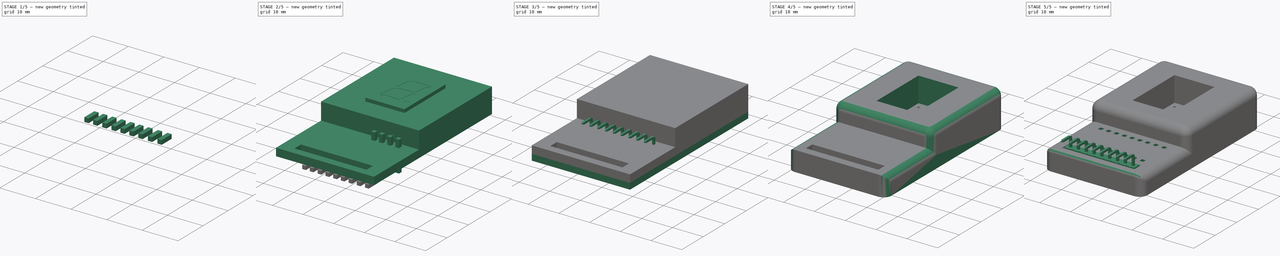
[diagram: build sequence overview — one tinted view per stage of 5, left to right]
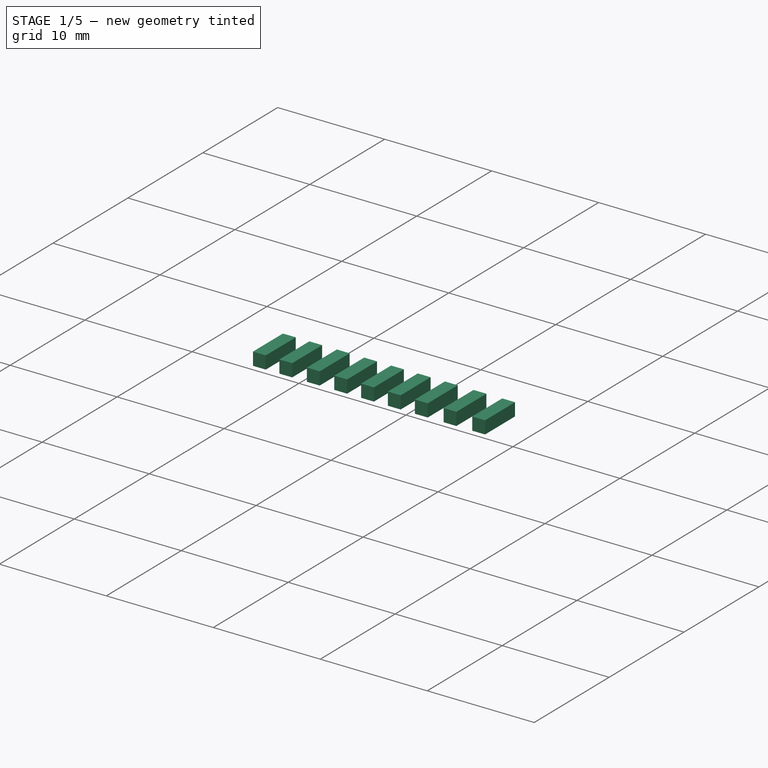
[diagram: stage 1 of 5 — iso view after this stage's code; geometry added in this stage tinted green]
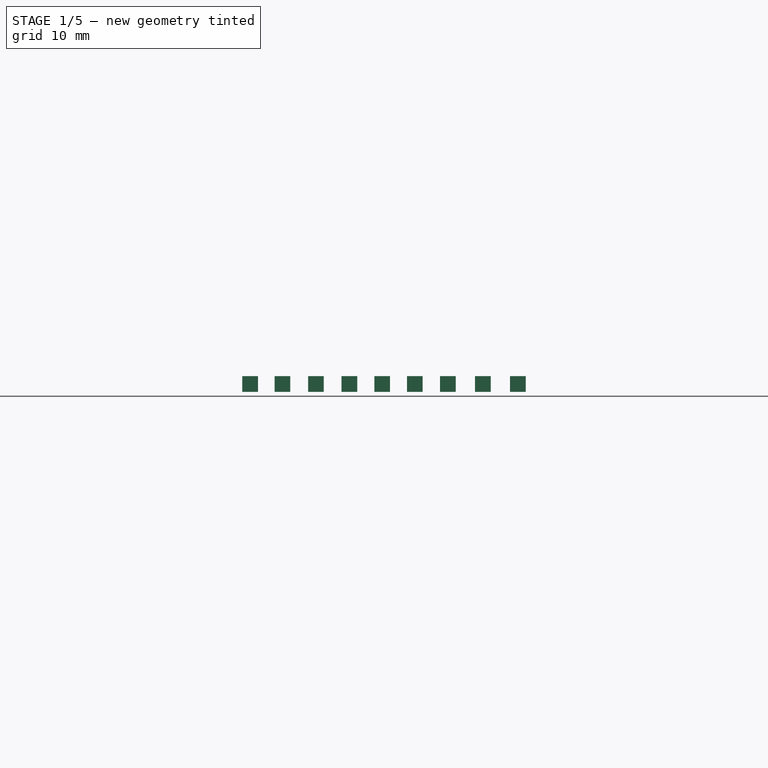
[diagram: stage 1 of 5 — front view after this stage's code; geometry added in this stage tinted green]
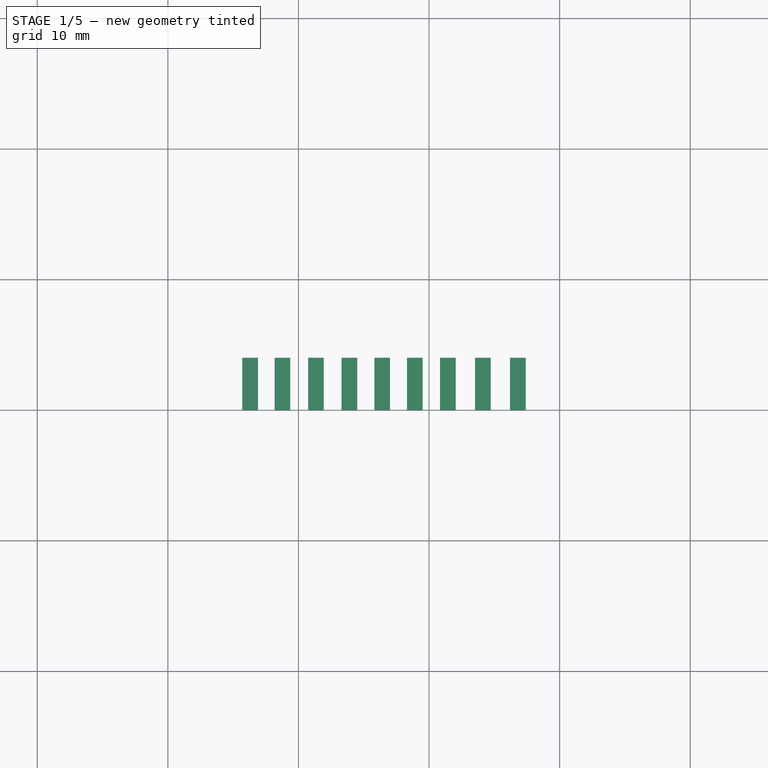
[diagram: stage 1 of 5 — top view after this stage's code; geometry added in this stage tinted green]
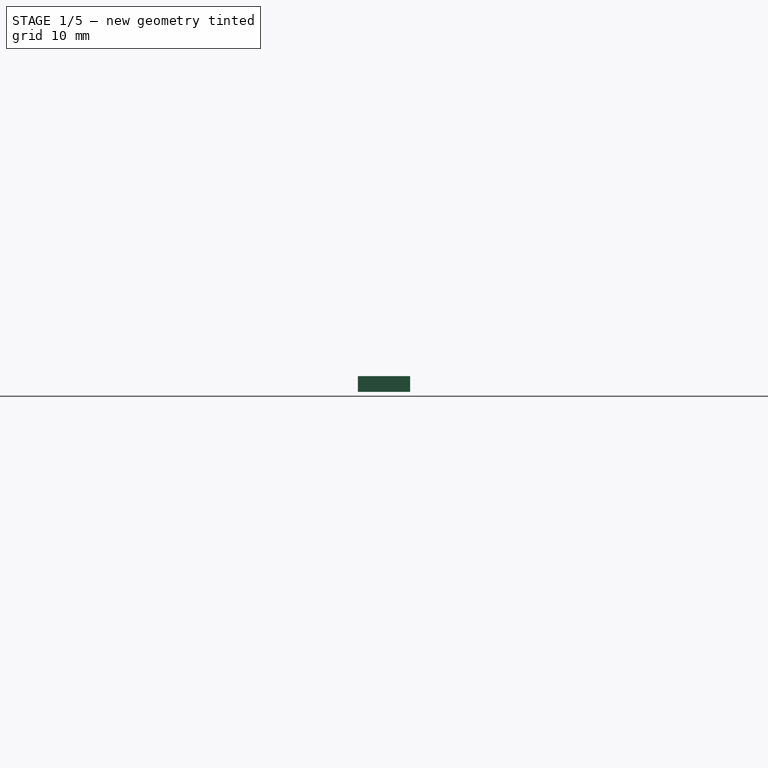
[diagram: stage 1 of 5 — right view after this stage's code; geometry added in this stage tinted green]
FCSTD DOCUMENT  (FreeCAD 0.18R16131 (Git))
Label: PCBPrint Display 7 seg resist
License: Public Domain
LicenseURL: http://en.wikipedia.org/wiki/Public_domain
objects: Part::Box×24, Part::Feature×20, Part::Cut×11, App::FeaturePython×9, Part::MultiFuse×5, Part::FeaturePython×4, App::DocumentObjectGroup×4, Part::Fillet×2, Sketcher::SketchObject×1, Part::Extrusion×1, Part::Offset×1
note: 69 computed .brp shape members not serialized (recipe doc carries the construction recipe); baked Part::Feature solids carry a one-line shape summary decoded from their .brp

FEATURE [Part::Box] Box015  label="Taladro009"
  AttacherType = Attacher::AttachEngine3D
  Height = 4
  Length = 1.2
  Placement = pos=(13.52,-5.86,-5) rot=(0,0,1;0rad)
  Width = 1.2
FEATURE [Part::Box] Box016  label="Taladro010"
  AttacherType = Attacher::AttachEngine3D
  Height = 4
  Length = 1.2
  Placement = pos=(16.2,-5.86,-5) rot=(0,0,1;0rad)
  Width = 1.2
FEATURE [Part::Box] Box017  label="Taladro011"
  AttacherType = Attacher::AttachEngine3D
  Height = 4
  Length = 1.2
  Placement = pos=(10.84,-5.86,-5) rot=(0,0,1;0rad)
  Width = 1.2
FEATURE [Part::Box] Box018  label="Taladro012"
  AttacherType = Attacher::AttachEngine3D
  Height = 4
  Length = 1.2
  Placement = pos=(-4.3,-5.86,-5) rot=(0,0,1;0rad)
  Width = 1.2
FEATURE [Part::Box] Box019  label="Taladro013"
  AttacherType = Attacher::AttachEngine3D
  Height = 4
  Length = 1.2
  Placement = pos=(-1.83,-5.86,-5) rot=(0,0,1;0rad)
  Width = 1.2
FEATURE [Part::Box] Box020  label="Taladro014"
  AttacherType = Attacher::AttachEngine3D
  Height = 4
  Length = 1.2
  Placement = pos=(0.74,-5.86,-5) rot=(0,0,1;0rad)
  Width = 1.2
FEATURE [Part::Box] Box021  label="Taladro015"
  AttacherType = Attacher::AttachEngine3D
  Height = 4
  Length = 1.2
  Placement = pos=(3.3,-5.86,-5) rot=(0,0,1;0rad)
  Width = 1.2
FEATURE [Part::Box] Box022  label="Taladro016"
  AttacherType = Attacher::AttachEngine3D
  Height = 4
  Length = 1.2
  Placement = pos=(5.81,-5.86,-5) rot=(0,0,1;0rad)
  Width = 1.2
FEATURE [Part::Box] Box023  label="Taladro017"
  AttacherType = Attacher::AttachEngine3D
  Height = 4
  Length = 1.2
  Placement = pos=(8.31,-5.86,-5) rot=(0,0,1;0rad)
  Width = 1.2
FEATURE [Part::MultiFuse] Fusion003001002  label="Taladros resistencia 004"
  Placement = pos=(0,-15,-8.7) rot=(1,0,0;-1.5708rad)
  Refine = true
  Shapes = -> [Box018,Box019,Box020,Box021,Box022,Box023,Box017,Box015,Box016]
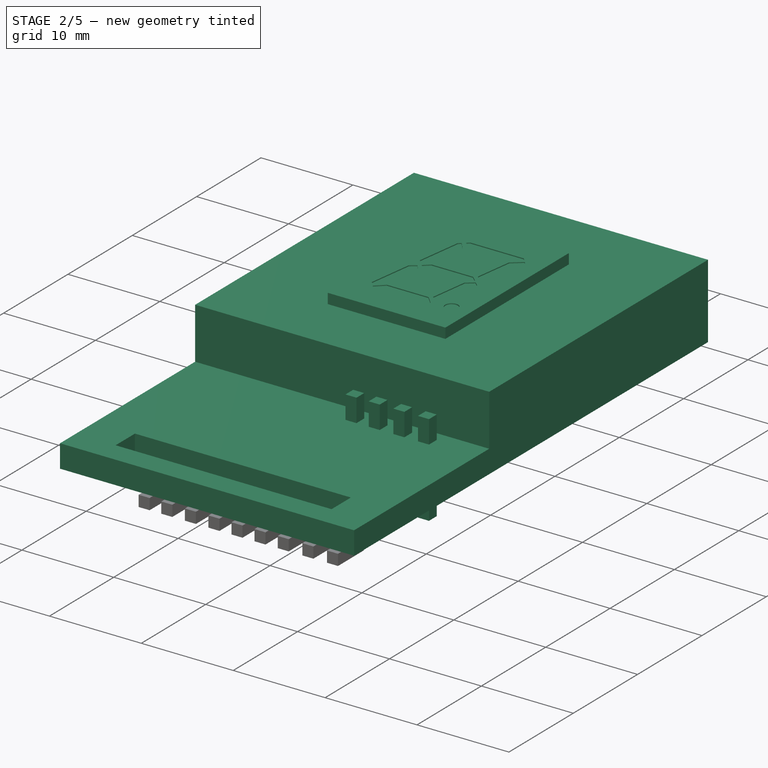
[diagram: stage 2 of 5 — iso view after this stage's code; geometry added in this stage tinted green]
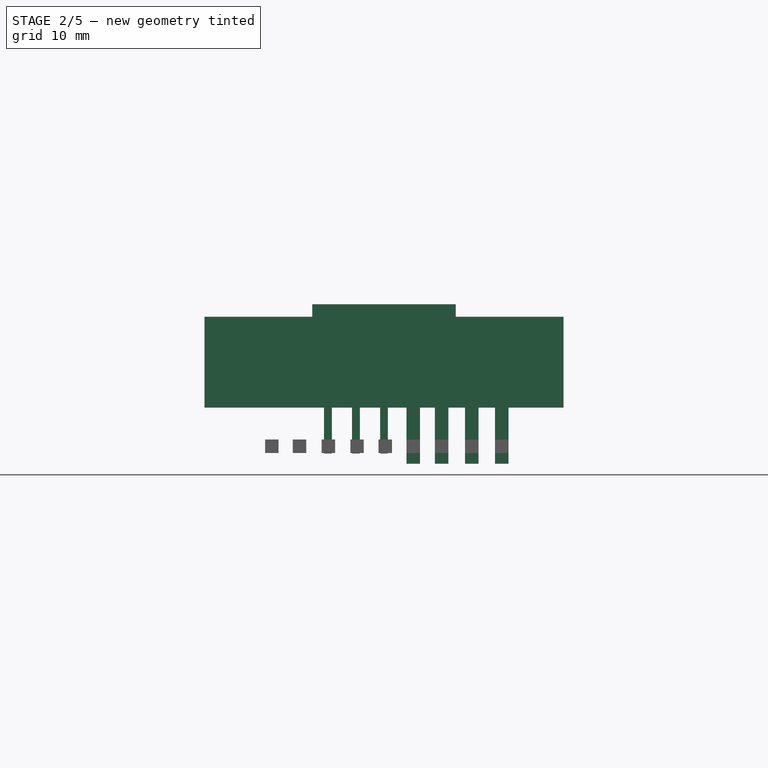
[diagram: stage 2 of 5 — front view after this stage's code; geometry added in this stage tinted green]
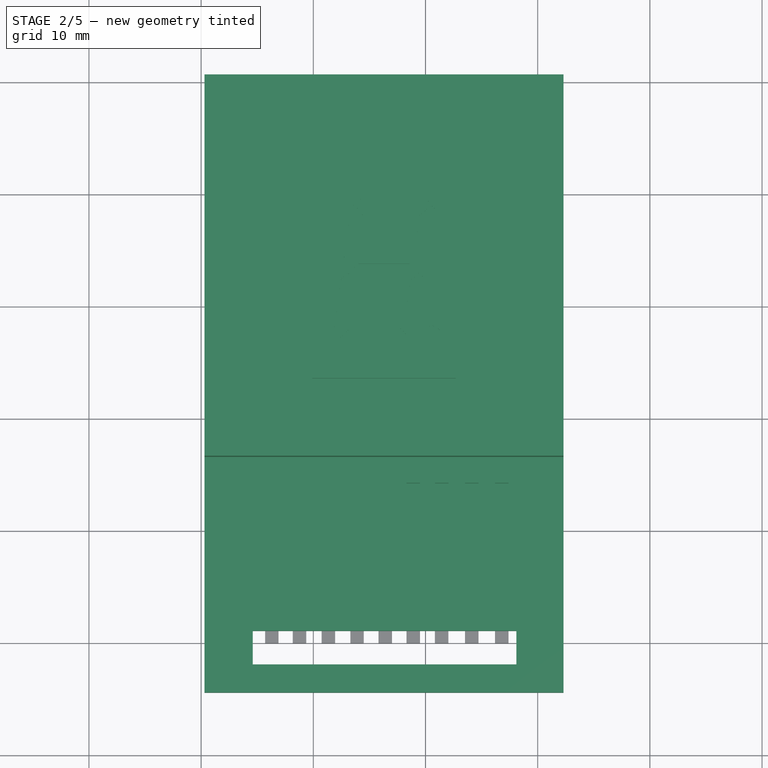
[diagram: stage 2 of 5 — top view after this stage's code; geometry added in this stage tinted green]
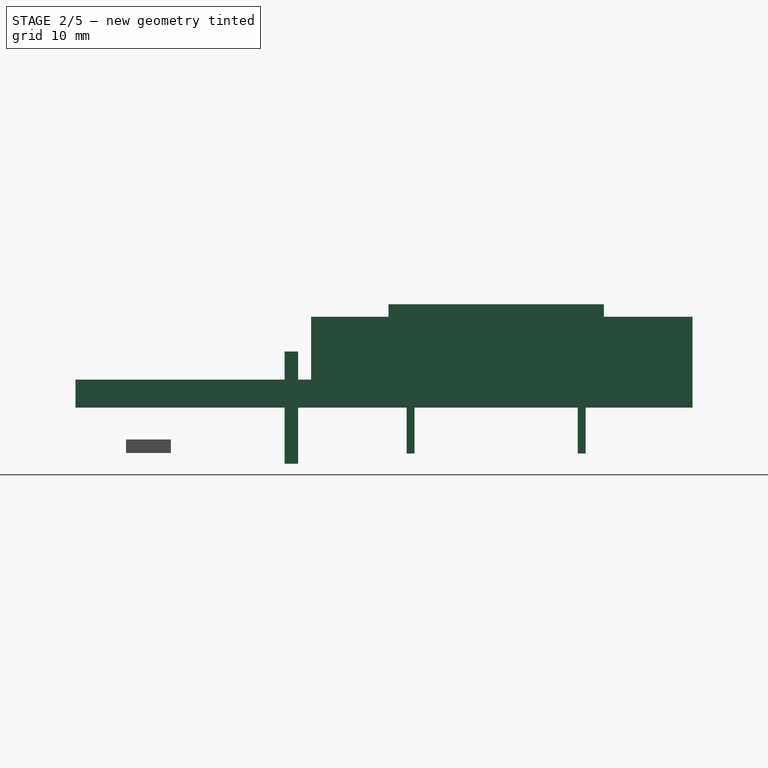
[diagram: stage 2 of 5 — right view after this stage's code; geometry added in this stage tinted green]
FEATURE [Part::Box] Box007  label="Taladro005"
  AttacherType = Attacher::AttachEngine3D
  Height = 10
  Length = 1.2
  Placement = pos=(8.31,-5.86,-5) rot=(0,0,1;0rad)
  Width = 1.2
FEATURE [Part::Box] Box008  label="Taladro006"
  AttacherType = Attacher::AttachEngine3D
  Height = 10
  Length = 1.2
  Placement = pos=(10.84,-5.86,-5) rot=(0,0,1;0rad)
  Width = 1.2
FEATURE [Part::Box] Box009  label="Taladro007"
  AttacherType = Attacher::AttachEngine3D
  Height = 10
  Length = 1.2
  Placement = pos=(13.52,-5.86,-5) rot=(0,0,1;0rad)
  Width = 1.2
FEATURE [Part::Box] Box010  label="Taladro008"
  AttacherType = Attacher::AttachEngine3D
  Height = 10
  Length = 1.2
  Placement = pos=(16.2,-5.86,-5) rot=(0,0,1;0rad)
  Width = 1.2
FEATURE [Part::Feature] Part__Feature002  label="Display_7_segmentos002"
  Placement = pos=(0,3.5,0.01) rot=(0,0,1;0rad)
  shape: bbox 12.6 x 19 x 13.1 mm, 127 faces (baked)
FEATURE [Part::Offset] Offset
  Fill = false
  Intersection = false
  Join = 2
  Mode = 0
  Placement = pos=(0,0,1) rot=(0,0,1;0rad)
  SelfIntersection = false
  Source = -> Part__Feature002
  Value = 0.1
FEATURE [Part::Box] Box011  label="Cubo001"
  AttacherType = Attacher::AttachEngine3D
  Height = 2.5
  Length = 32
  Placement = pos=(-9.7,-24.5,0) rot=(0,0,1;0rad)
  Width = 55
FEATURE [Part::Box] Box012  label="Cubo002"
  AttacherType = Attacher::AttachEngine3D
  Height = 3
  Length = 23.5
  Placement = pos=(-5.4,-22,-0.1) rot=(0,0,1;0rad)
  Width = 3
FEATURE [Part::Cut] Cut005  label="Taladro conector"
  Base = -> Box011
  Refine = true
  Tool = -> Box012
FEATURE [Part::Box] Box013  label="Cubo003"
  AttacherType = Attacher::AttachEngine3D
  Height = 5.6
  Length = 32
  Placement = pos=(-9.7,-3.5,2.5) rot=(0,0,1;0rad)
  Width = 34
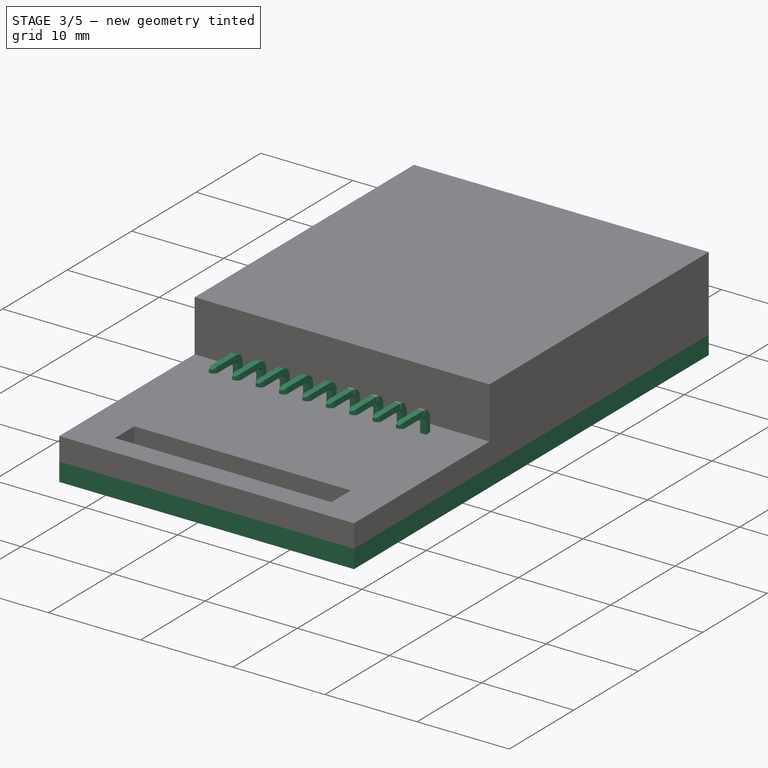
[diagram: stage 3 of 5 — iso view after this stage's code; geometry added in this stage tinted green]
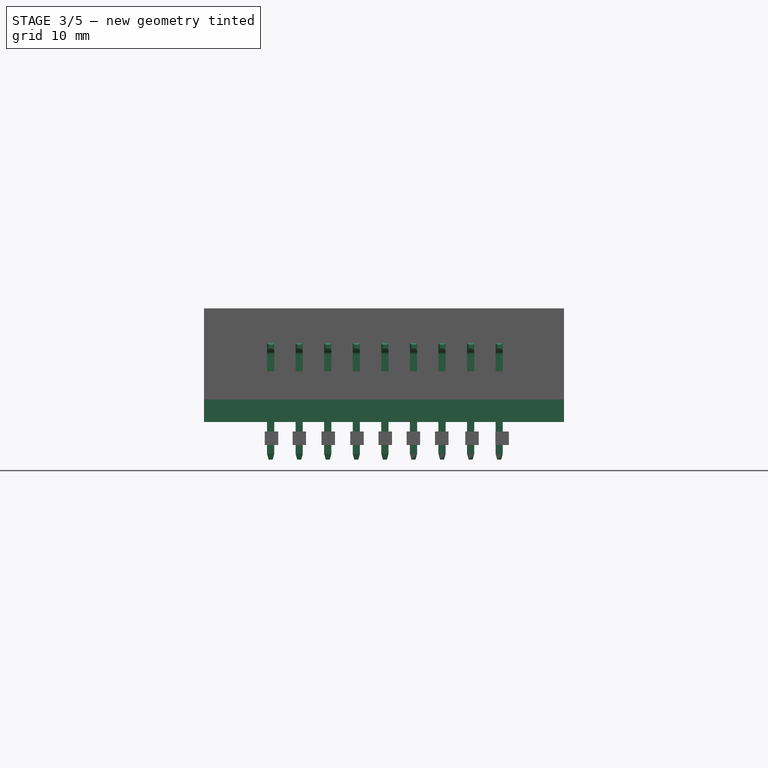
[diagram: stage 3 of 5 — front view after this stage's code; geometry added in this stage tinted green]
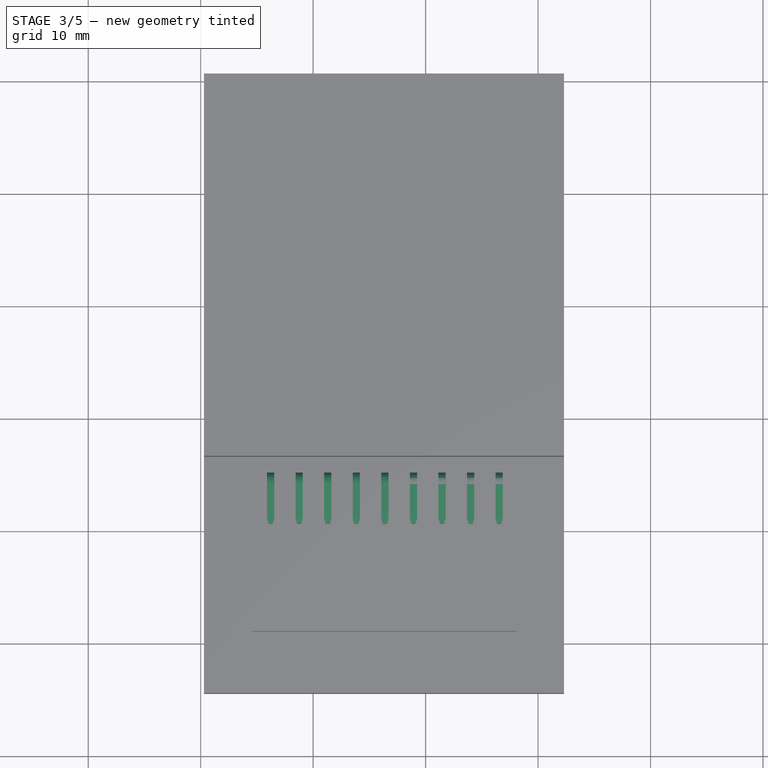
[diagram: stage 3 of 5 — top view after this stage's code; geometry added in this stage tinted green]
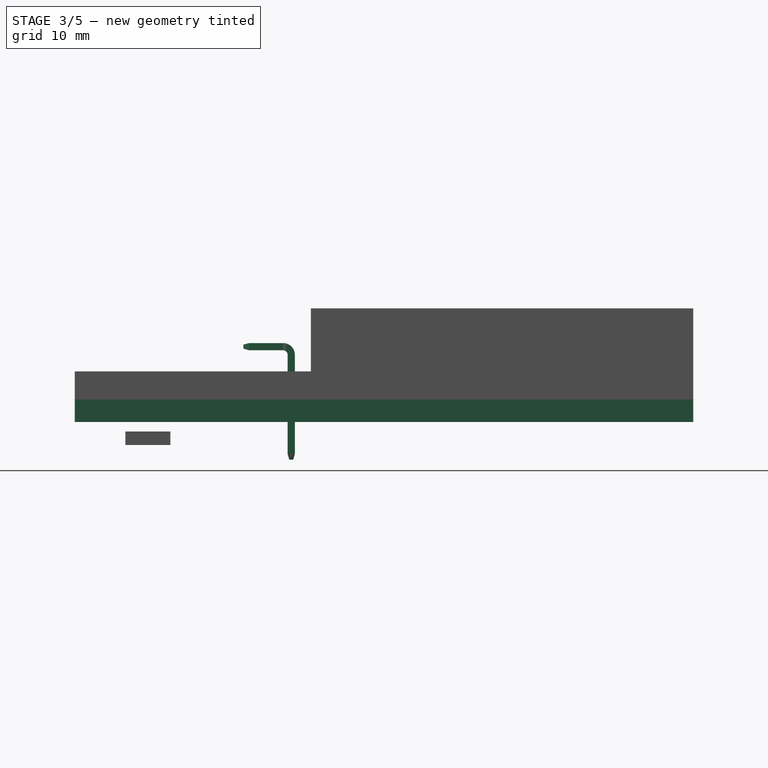
[diagram: stage 3 of 5 — right view after this stage's code; geometry added in this stage tinted green]
FEATURE [App::DocumentObjectGroup] Group002  label="conector"
  Group = -> [Fusion]
FEATURE [Part::Box] Box001  label="Base solida"
  AttacherType = Attacher::AttachEngine3D
  Height = 2
  Length = 32
  Placement = pos=(-9.7,-24.5,-2) rot=(0,0,1;0rad)
  Width = 55
FEATURE [Part::Feature] Clone001001001  label="pins006"
  Placement = pos=(3.84,-2.99972,4.7) rot=(0.57735,0.57735,0.57735;4.18879rad)
  shape: bbox 5.72 x 4.57 x 10.36 mm, 54 faces, 3 solids (baked)
FEATURE [Part::Feature] Clone002004001  label="pins005"
  Placement = pos=(11.46,-2.99972,4.7) rot=(0.57735,0.57735,0.57735;4.18879rad)
  shape: bbox 5.72 x 4.57 x 10.36 mm, 54 faces, 3 solids (baked)
FEATURE [Part::Feature] Clone002002001  label="pins004"
  Placement = pos=(-3.78,-2.99972,4.7) rot=(0.57735,0.57735,0.57735;4.18879rad)
  shape: bbox 5.72 x 4.57 x 10.36 mm, 54 faces, 3 solids (baked)
FEATURE [Part::MultiFuse] Fusion002  label="pines"
  Placement = pos=(0,-3.5,0) rot=(0,0,1;0rad)
  Refine = true
  Shapes = -> [Clone002002001,Clone002004001,Clone001001001]
FEATURE [Part::Box] Box002  label="Taladro"
  AttacherType = Attacher::AttachEngine3D
  Height = 10
  Length = 1.2
  Placement = pos=(-4.3,-5.86,-5) rot=(0,0,1;0rad)
  Width = 1.2
FEATURE [Part::Box] Box003  label="Taladro001"
  AttacherType = Attacher::AttachEngine3D
  Height = 10
  Length = 1.2
  Placement = pos=(-1.83,-5.86,-5) rot=(0,0,1;0rad)
  Width = 1.2
FEATURE [Part::Box] Box004  label="Taladro002"
  AttacherType = Attacher::AttachEngine3D
  Height = 10
  Length = 1.2
  Placement = pos=(0.74,-5.86,-5) rot=(0,0,1;0rad)
  Width = 1.2
FEATURE [Part::Box] Box005  label="Taladro003"
  AttacherType = Attacher::AttachEngine3D
  Height = 10
  Length = 1.2
  Placement = pos=(3.3,-5.86,-5) rot=(0,0,1;0rad)
  Width = 1.2
FEATURE [Part::Box] Box006  label="Taladro004"
  AttacherType = Attacher::AttachEngine3D
  Height = 10
  Length = 1.2
  Placement = pos=(5.81,-5.86,-5) rot=(0,0,1;0rad)
  Width = 1.2
FEATURE [Part::MultiFuse] Fusion003  label="Taladros resistencia 1"
  Placement = pos=(0,-1,0) rot=(0,0,1;0rad)
  Refine = true
  Shapes = -> [Box002,Box003,Box004,Box005,Box006,Box007,Box008,Box009,Box010]
FEATURE [Part::Cut] Cut003
  Base = -> Box001
  Refine = true
  Tool = -> Fusion003
FEATURE [Part::Cut] Cut004  label="Taladros display"
  Base = -> Cut003
  Refine = true
  Tool = -> Offset
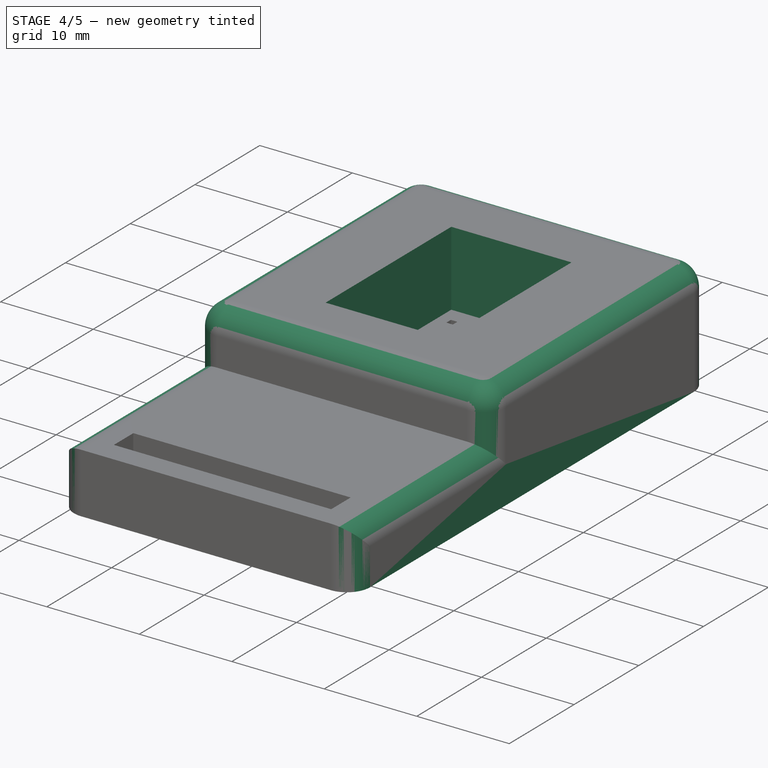
[diagram: stage 4 of 5 — iso view after this stage's code; geometry added in this stage tinted green]
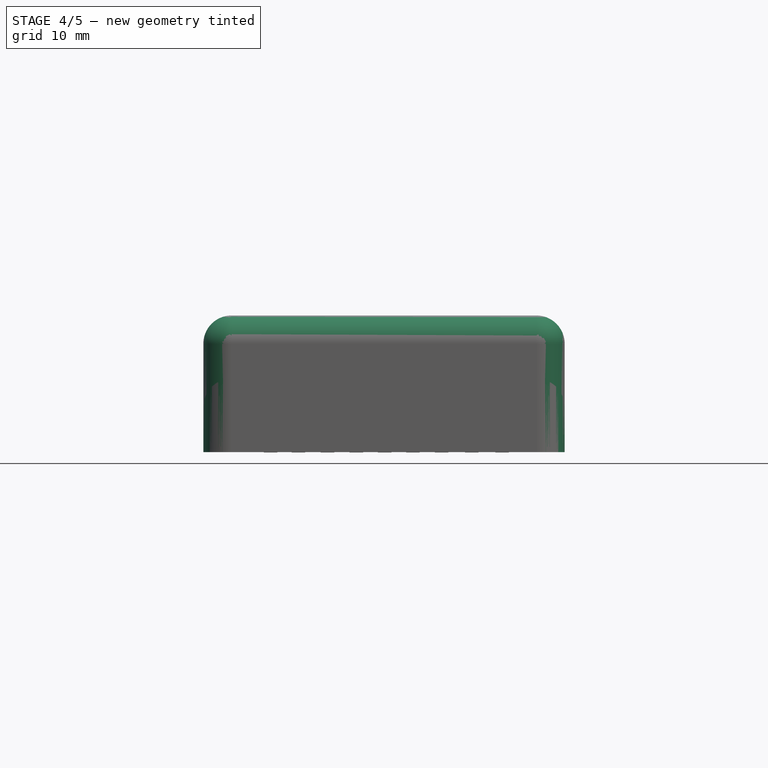
[diagram: stage 4 of 5 — front view after this stage's code; geometry added in this stage tinted green]
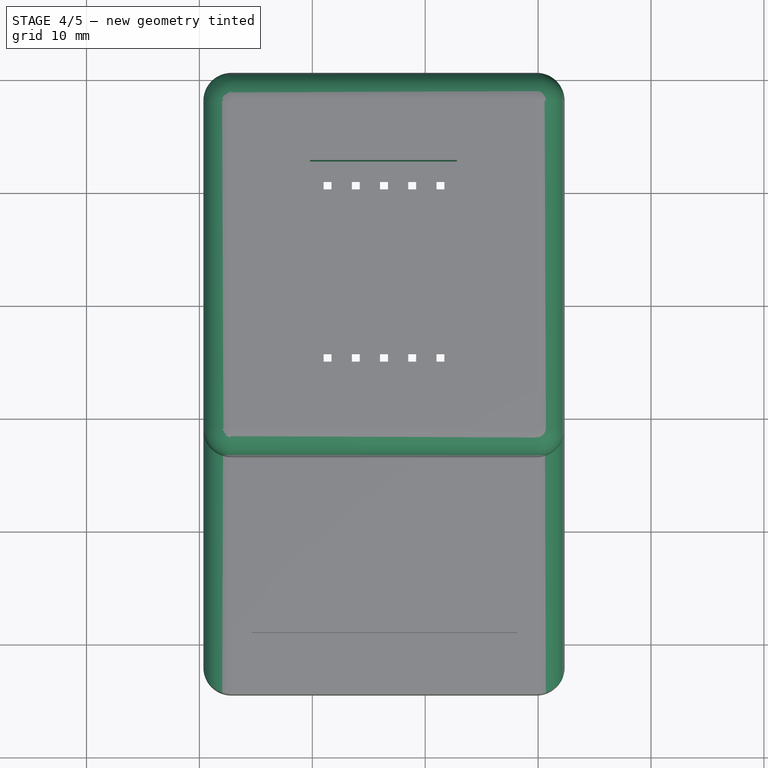
[diagram: stage 4 of 5 — top view after this stage's code; geometry added in this stage tinted green]
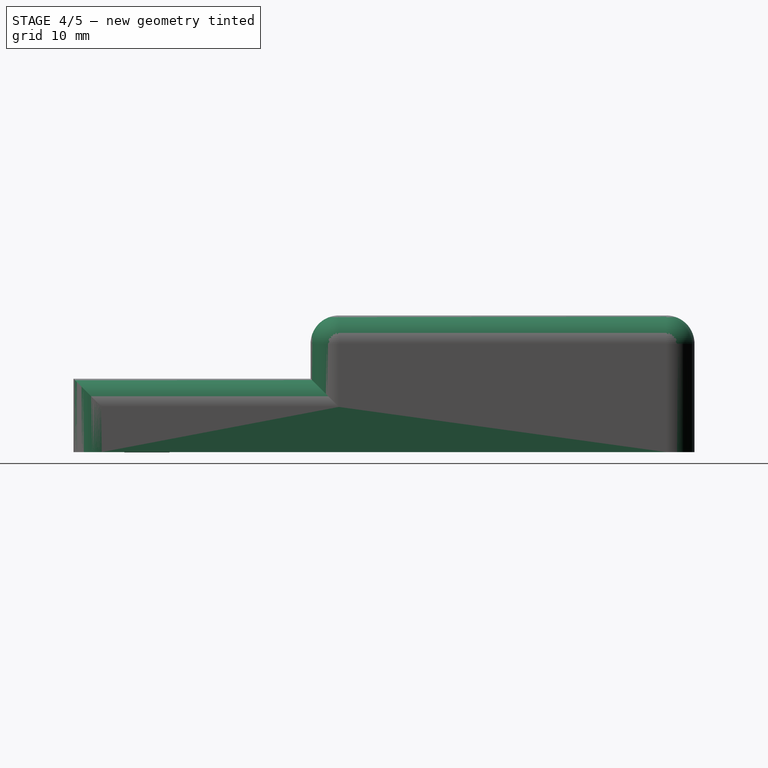
[diagram: stage 4 of 5 — right view after this stage's code; geometry added in this stage tinted green]
FEATURE [Part::Feature] Part__Feature  label="Display_7_segmentos"
  Placement = pos=(0,3.5,0.01) rot=(0,0,1;0rad)
  shape: bbox 12.6 x 19 x 13.1 mm, 127 faces (baked)
FEATURE [Part::Box] Box  label="Cubo"
  AttacherType = Attacher::AttachEngine3D
  Height = 2
  Length = 32
  Placement = pos=(-9.7,-24.5,-4) rot=(0,0,1;0rad)
  Width = 55
FEATURE [Part::Feature] Part__Feature001  label="Display_7_segmentos001"
  Placement = pos=(0,3.5,0.01) rot=(0,0,1;0rad)
  shape: bbox 12.6 x 19 x 13.1 mm, 127 faces (baked)
FEATURE [Part::Cut] Cut
  Base = -> Box
  Refine = true
  Tool = -> Part__Feature001
FEATURE [Part::Cut] Cut001
  Base = -> Cut
  Refine = true
  Tool = -> Fusion002
FEATURE [Sketcher::SketchObject] Sketch
  MapMode = 5
  Placement = pos=(0,0,-2) rot=(0,0,1;0rad)
  Support = -> [Cut001]
  sketch-geometry (130):
    g0: LineSegment StartX=5.35125 StartY=21.606 StartZ=0 EndX=7.19426 EndY=21.606 EndZ=0
    g1: LineSegment StartX=7.19426 StartY=21.606 StartZ=0 EndX=7.19426 EndY=17.549 EndZ=0
    g2: LineSegment StartX=5.35125 StartY=21.606 StartZ=0 EndX=5.35125 EndY=18.749 EndZ=0
    g3: LineSegment StartX=5.35125 StartY=18.749 StartZ=0 EndX=-0.413922 EndY=18.749 EndZ=0
    g4: LineSegment StartX=-0.413922 StartY=18.749 StartZ=0 EndX=-0.413922 EndY=26.4811 EndZ=0
    g5: LineSegment StartX=-0.413922 StartY=26.4811 StartZ=0 EndX=19.7452 EndY=26.4811 EndZ=0
    g6: LineSegment StartX=19.7452 StartY=26.4811 StartZ=0 EndX=19.7452 EndY=9.94902 EndZ=0
    g7: LineSegment StartX=20.9452 StartY=-5.85642 StartZ=0 EndX=20.9452 EndY=27.6811 EndZ=0
    g8: LineSegment StartX=20.9452 StartY=27.6811 StartZ=0 EndX=-1.61392 EndY=27.6811 EndZ=0
    g9: LineSegment StartX=-1.61392 StartY=27.6811 StartZ=0 EndX=-1.61392 EndY=17.549 EndZ=0
    g10: LineSegment StartX=-1.61392 StartY=17.549 StartZ=0 EndX=7.19426 EndY=17.549 EndZ=0
    g11: LineSegment StartX=2.22996 StartY=19.749 StartZ=0 EndX=0.386078 EndY=19.749 EndZ=0
    g12: LineSegment StartX=0.386078 StartY=19.749 StartZ=0 EndX=0.386078 EndY=25.6811 EndZ=0
    g13: LineSegment StartX=0.386078 StartY=25.6811 StartZ=0 EndX=18.9452 EndY=25.6811 EndZ=0
    g14: LineSegment StartX=18.9452 StartY=25.6811 StartZ=0 EndX=18.9452 EndY=9.94902 EndZ=0
    g15: LineSegment StartX=17.7452 StartY=1.85124 StartZ=0 EndX=17.7452 EndY=8.74902 EndZ=0
    g16: LineSegment StartX=17.7452 StartY=24.4811 StartZ=0 EndX=2.22996 EndY=24.4811 EndZ=0
    g17: LineSegment StartX=2.22996 StartY=24.4811 StartZ=0 EndX=2.22996 EndY=19.749 EndZ=0
    g18: LineSegment StartX=4.55125 StartY=19.749 StartZ=0 EndX=3.02996 EndY=19.749 EndZ=0
    g19: LineSegment StartX=3.02996 StartY=19.749 StartZ=0 EndX=3.02996 EndY=23.6811 EndZ=0
    g20: LineSegment StartX=3.02996 StartY=23.6811 StartZ=0 EndX=16.9452 EndY=23.6811 EndZ=0
    g21: LineSegment StartX=16.9452 StartY=23.6811 StartZ=0 EndX=16.9452 EndY=9.94902 EndZ=0
    g22: LineSegment StartX=9.72943 StartY=-5.85642 StartZ=0 EndX=8.08974 EndY=-5.85642 EndZ=0
    g23: LineSegment StartX=8.08974 StartY=-5.85642 StartZ=0 EndX=8.08974 EndY=3.82369 EndZ=0
    g24: LineSegment StartX=8.08974 StartY=3.82369 StartZ=0 EndX=13.1423 EndY=3.82369 EndZ=0
    g25: LineSegment StartX=15.7452 StartY=3.82369 StartZ=0 EndX=15.7452 EndY=8.74902 EndZ=0
    g26: LineSegment StartX=15.7452 StartY=22.4811 StartZ=0 EndX=4.55125 EndY=22.4811 EndZ=0
    g27: LineSegment StartX=4.55125 StartY=22.4811 StartZ=0 EndX=4.55125 EndY=19.749 EndZ=0
    g28: LineSegment StartX=16.9452 StartY=2.55279 StartZ=0 EndX=14.9452 EndY=2.55279 EndZ=0
    g29: LineSegment StartX=9.72943 StartY=2.62369 StartZ=0 EndX=9.72943 EndY=-5.85642 EndZ=0
    g30: LineSegment StartX=17.7452 StartY=1.85124 StartZ=0 EndX=14.9452 EndY=1.85124 EndZ=0
    g31: LineSegment StartX=10.5294 StartY=1.85124 StartZ=0 EndX=10.5294 EndY=-5.85642 EndZ=0
    g32: LineSegment StartX=12.3423 StartY=-5.85642 StartZ=0 EndX=10.5294 EndY=-5.85642 EndZ=0
    g33: LineSegment StartX=19.7452 StartY=-3.56798 StartZ=0 EndX=15.7452 EndY=-3.56798 EndZ=0
    g34: LineSegment StartX=15.7452 StartY=-3.56798 StartZ=0 EndX=15.7452 EndY=-5.85642 EndZ=0
    g35: LineSegment StartX=15.7452 StartY=-5.85642 StartZ=0 EndX=20.9452 EndY=-5.85642 EndZ=0
    g36: LineSegment StartX=18.9452 StartY=0.651245 StartZ=0 EndX=14.9452 EndY=0.651245 EndZ=0
    g37: LineSegment StartX=12.3423 StartY=0.651245 StartZ=0 EndX=12.3423 EndY=-5.85642 EndZ=0
    g38: LineSegment StartX=2.11901 StartY=3.82369 StartZ=0 EndX=2.11901 EndY=7.94902 EndZ=0
    g39: LineSegment StartX=2.11901 StartY=7.94902 StartZ=0 EndX=0.577175 EndY=7.94902 EndZ=0
    g40: LineSegment StartX=0.577175 StartY=7.94902 StartZ=0 EndX=0.577175 EndY=2.62369 EndZ=0
    g41: LineSegment StartX=0.577175 StartY=2.62369 StartZ=0 EndX=5.52513 EndY=2.62369 EndZ=0
    g42: LineSegment StartX=5.52513 StartY=2.62369 StartZ=0 EndX=5.52513 EndY=-5.85642 EndZ=0
    g43: LineSegment StartX=5.52513 StartY=-5.85642 StartZ=0 EndX=7.28974 EndY=-5.85642 EndZ=0
    g44: LineSegment StartX=7.28974 StartY=-5.85642 StartZ=0 EndX=7.28974 EndY=3.82369 EndZ=0
    g45: LineSegment StartX=7.28974 StartY=3.82369 StartZ=0 EndX=2.11901 EndY=3.82369 EndZ=0
    g46: LineSegment StartX=2.91901 StartY=4.62369 StartZ=0 EndX=2.91901 EndY=8.74902 EndZ=0
    g47: LineSegment StartX=2.91901 StartY=8.74902 StartZ=0 EndX=-0.222825 EndY=8.74902 EndZ=0
    g48: LineSegment StartX=-0.222825 StartY=8.74902 StartZ=0 EndX=-0.222825 EndY=1.82369 EndZ=0
    g49: LineSegment StartX=-0.222825 StartY=1.82369 StartZ=0 EndX=4.72513 EndY=1.82369 EndZ=0
    g50: LineSegment StartX=4.72513 StartY=1.82369 StartZ=0 EndX=4.72513 EndY=-5.85642 EndZ=0
    g51: LineSegment StartX=4.72513 StartY=-5.85642 StartZ=0 EndX=3.07032 EndY=-5.85642 EndZ=0
    g52: LineSegment StartX=3.07032 StartY=-5.85642 StartZ=0 EndX=3.07032 EndY=0.623686 EndZ=0
    g53: LineSegment StartX=3.07032 StartY=0.623686 StartZ=0 EndX=-1.42283 EndY=0.623686 EndZ=0
    g54: LineSegment StartX=-1.42283 StartY=0.623686 StartZ=0 EndX=-1.42283 EndY=9.94902 EndZ=0
    g55: LineSegment StartX=-1.42283 StartY=9.94902 StartZ=0 EndX=4.83343 EndY=9.94902 EndZ=0
    g56: LineSegment StartX=4.83343 StartY=9.94902 StartZ=0 EndX=4.83343 EndY=4.62369 EndZ=0
    g57: LineSegment StartX=4.83343 StartY=4.62369 StartZ=0 EndX=2.91901 EndY=4.62369 EndZ=0
    g58: LineSegment StartX=0.399901 StartY=-5.85642 StartZ=0 EndX=2.27032 EndY=-5.85642 EndZ=0
    g59: LineSegment StartX=2.27032 StartY=-5.85642 StartZ=0 EndX=2.27032 EndY=-0.176314 EndZ=0
    g60: LineSegment StartX=2.27032 StartY=-0.176314 StartZ=0 EndX=-2.22283 EndY=-0.176314 EndZ=0
    g61: LineSegment StartX=-2.22283 StartY=-0.176314 StartZ=0 EndX=-2.22283 EndY=10.949 EndZ=0
    g62: LineSegment StartX=-2.22283 StartY=10.949 StartZ=0 EndX=8.0625 EndY=10.949 EndZ=0
    g63: LineSegment StartX=8.0625 StartY=10.949 StartZ=0 EndX=8.0625 EndY=9.94902 EndZ=0
    g64: LineSegment StartX=8.0625 StartY=4.62369 StartZ=0 EndX=9.88243 EndY=4.62369 EndZ=0
    g65: LineSegment StartX=9.88243 StartY=4.62369 StartZ=0 EndX=9.88243 EndY=8.74902 EndZ=0
    g66: LineSegment StartX=9.88243 StartY=12.149 StartZ=0 EndX=-3.42283 EndY=12.149 EndZ=0
    g67: LineSegment StartX=-3.42283 StartY=12.149 StartZ=0 EndX=-3.42283 EndY=-1.37631 EndZ=0
    g68: LineSegment StartX=-3.42283 StartY=-1.37631 StartZ=0 EndX=0.399901 EndY=-1.37631 EndZ=0
    g69: LineSegment StartX=0.399901 StartY=-1.37631 StartZ=0 EndX=0.399901 EndY=-5.85642 EndZ=0
    g70: LineSegment StartX=-2.05171 StartY=-5.85642 StartZ=0 EndX=-0.400099 EndY=-5.85642 EndZ=0
    g71: LineSegment StartX=-0.400099 StartY=-5.85642 StartZ=0 EndX=-0.400099 EndY=-2.17631 EndZ=0
    g72: LineSegment StartX=-0.400099 StartY=-2.17631 StartZ=0 EndX=-4.22283 EndY=-2.17631 EndZ=0
    g73: LineSegment StartX=-4.22283 StartY=-2.17631 StartZ=0 EndX=-4.22283 EndY=13.149 EndZ=0
    g74: LineSegment StartX=-4.22283 StartY=13.149 StartZ=0 EndX=12.0986 EndY=13.149 EndZ=0
    g75: LineSegment StartX=12.0986 StartY=13.149 StartZ=0 EndX=12.0986 EndY=21.6811 EndZ=0
    g76: LineSegment StartX=12.0986 StartY=21.6811 StartZ=0 EndX=10.353 EndY=21.6811 EndZ=0
    g77: LineSegment StartX=10.353 StartY=21.6811 StartZ=0 EndX=10.353 EndY=14.349 EndZ=0
    g78: LineSegment StartX=10.353 StartY=14.349 StartZ=0 EndX=-5.42283 EndY=14.349 EndZ=0
    g79: LineSegment StartX=-5.42283 StartY=14.349 StartZ=0 EndX=-5.42283 EndY=-3.37631 EndZ=0
    g80: LineSegment StartX=-5.42283 StartY=-3.37631 StartZ=0 EndX=-2.05171 EndY=-3.37631 EndZ=0
    g81: LineSegment StartX=-2.05171 StartY=-3.37631 StartZ=0 EndX=-2.05171 EndY=-5.85642 EndZ=0
    g82: LineSegment StartX=-2.85171 StartY=-5.85642 StartZ=0 EndX=-2.85171 EndY=-4.17631 EndZ=0
    g83: LineSegment StartX=-2.85171 StartY=-4.17631 StartZ=0 EndX=-6.22283 EndY=-4.17631 EndZ=0
    g84: LineSegment StartX=-6.22283 StartY=-4.17631 StartZ=0 EndX=-6.22283 EndY=15.349 EndZ=0
    g85: LineSegment StartX=-6.22283 StartY=15.349 StartZ=0 EndX=9.55298 EndY=15.349 EndZ=0
    g86: LineSegment StartX=9.55298 StartY=15.349 StartZ=0 EndX=9.55298 EndY=21.5988 EndZ=0
    g87: LineSegment StartX=9.55298 StartY=21.5988 StartZ=0 EndX=7.99426 EndY=21.5988 EndZ=0
    g88: LineSegment StartX=7.99426 StartY=21.5988 StartZ=0 EndX=7.99426 EndY=16.549 EndZ=0
    g89: LineSegment StartX=7.99426 StartY=16.549 StartZ=0 EndX=-7.42283 EndY=16.549 EndZ=0
    g90: LineSegment StartX=-7.42283 StartY=16.549 StartZ=0 EndX=-7.42283 EndY=-5.85642 EndZ=0
    g91: LineSegment StartX=-7.42283 StartY=-5.85642 StartZ=0 EndX=-2.85171 EndY=-5.85642 EndZ=0
    g92: LineSegment [constr] StartX=-7.42283 StartY=-5.85642 StartZ=0 EndX=20.9452 EndY=-5.85642 EndZ=0
    g93: LineSegment StartX=5.63343 StartY=4.62369 StartZ=0 EndX=7.2625 EndY=4.62369 EndZ=0
    g94: LineSegment StartX=7.2625 StartY=4.62369 StartZ=0 EndX=7.2625 EndY=8.74902 EndZ=0
    g95: LineSegment StartX=7.2625 StartY=8.74902 StartZ=0 EndX=8.0625 EndY=8.74902 EndZ=0
    g96: LineSegment StartX=19.7452 StartY=9.94902 StartZ=0 EndX=18.9452 EndY=9.94902 EndZ=0
    g97: LineSegment StartX=5.63343 StartY=9.94902 StartZ=0 EndX=5.63343 EndY=4.62369 EndZ=0
    g98: LineSegment StartX=8.0625 StartY=8.74902 StartZ=0 EndX=8.0625 EndY=4.62369 EndZ=0
    g99: LineSegment StartX=9.88243 StartY=9.94902 StartZ=0 EndX=9.88243 EndY=12.149 EndZ=0
    g100: LineSegment StartX=9.88243 StartY=8.74902 StartZ=0 EndX=15.7452 EndY=8.74902 EndZ=0
    g101: LineSegment StartX=8.0625 StartY=9.94902 StartZ=0 EndX=5.63343 EndY=9.94902 EndZ=0
    g102: LineSegment StartX=15.7452 StartY=9.94902 StartZ=0 EndX=15.7452 EndY=22.4811 EndZ=0
    g103: LineSegment StartX=16.9452 StartY=8.74902 StartZ=0 EndX=16.9452 EndY=2.55279 EndZ=0
    g104: LineSegment StartX=17.7452 StartY=9.94902 StartZ=0 EndX=17.7452 EndY=24.4811 EndZ=0
    g105: LineSegment StartX=18.9452 StartY=8.74902 StartZ=0 EndX=18.9452 EndY=0.651245 EndZ=0
    g106: LineSegment StartX=19.7452 StartY=8.74902 StartZ=0 EndX=19.7452 EndY=-3.56798 EndZ=0
    g107: LineSegment StartX=15.7452 StartY=9.94902 StartZ=0 EndX=9.88243 EndY=9.94902 EndZ=0
    g108: LineSegment StartX=16.9452 StartY=8.74902 StartZ=0 EndX=17.7452 EndY=8.74902 EndZ=0
    g109: LineSegment StartX=18.9452 StartY=8.74902 StartZ=0 EndX=19.7452 EndY=8.74902 EndZ=0
    g110: LineSegment StartX=17.7452 StartY=9.94902 StartZ=0 EndX=16.9452 EndY=9.94902 EndZ=0
    g111: LineSegment StartX=13.1423 StartY=-5.85642 StartZ=0 EndX=14.9452 EndY=-5.85642 EndZ=0
    g112: LineSegment StartX=14.9452 StartY=-5.85642 StartZ=0 EndX=14.9452 EndY=0.651245 EndZ=0
    g113: LineSegment StartX=14.9452 StartY=7.54902 StartZ=0 EndX=10.6824 EndY=7.54902 EndZ=0
    g114: LineSegment StartX=10.6824 StartY=7.54902 StartZ=0 EndX=10.6824 EndY=4.62369 EndZ=0
    g115: LineSegment StartX=10.6824 StartY=4.62369 StartZ=0 EndX=13.1423 EndY=4.62369 EndZ=0
    g116: LineSegment StartX=13.1423 StartY=4.62369 StartZ=0 EndX=13.1423 EndY=3.82369 EndZ=0
    g117: LineSegment StartX=14.9452 StartY=3.82369 StartZ=0 EndX=15.7452 EndY=3.82369 EndZ=0
    g118: LineSegment StartX=14.9452 StartY=3.82369 StartZ=0 EndX=14.9452 EndY=7.54902 EndZ=0
    g119: LineSegment StartX=13.1409 StartY=1.85124 StartZ=0 EndX=10.5294 EndY=1.85124 EndZ=0
    g120: LineSegment StartX=13.1423 StartY=0.651245 StartZ=0 EndX=13.1423 EndY=-5.85642 EndZ=0
    g121: LineSegment StartX=14.9452 StartY=1.85124 StartZ=0 EndX=14.9452 EndY=2.55279 EndZ=0
    g122: LineSegment StartX=13.1423 StartY=0.651245 StartZ=0 EndX=12.3423 EndY=0.651245 EndZ=0
    g123: LineSegment [constr] StartX=13.1423 StartY=4.62369 StartZ=0 EndX=2.91901 EndY=4.62369 EndZ=0
    g124: LineSegment [constr] StartX=4.83343 StartY=9.94902 StartZ=0 EndX=5.63343 EndY=9.94902 EndZ=0
    g125: LineSegment [constr] StartX=2.22996 StartY=19.749 StartZ=0 EndX=3.02996 EndY=19.749 EndZ=0
    g126: LineSegment [constr] StartX=7.28974 StartY=3.82369 StartZ=0 EndX=8.08974 EndY=3.82369 EndZ=0
    g127: LineSegment [constr] StartX=13.1423 StartY=3.82369 StartZ=0 EndX=14.9452 EndY=3.82369 EndZ=0
    g128: LineSegment StartX=13.1409 StartY=2.62369 StartZ=0 EndX=13.1409 EndY=1.85124 EndZ=0
    g129: LineSegment StartX=9.72943 StartY=2.62369 StartZ=0 EndX=13.1409 EndY=2.62369 EndZ=0
  constraints (336):
    c: Horizontal(g0)
    c: Coincident(g0,g1)
    c: Vertical(g1)
    c: Coincident(g0,g2)
    c: Vertical(g2)
    c: Coincident(g2,g3)
    c: Horizontal(g3)
    c: Coincident(g3,g4)
    c: Vertical(g4)
    c: Coincident(g4,g5)
    c: Horizontal(g5)
    c: Coincident(g5,g6)
    c: Vertical(g6)
    c: Vertical(g7)
    c: Coincident(g7,g8)
    c: Horizontal(g8)
    c: Coincident(g8,g9)
    c: Vertical(g9)
    c: Coincident(g9,g10)
    c: Coincident(g10,g1)
    c: Horizontal(g10)
    c: DistanceY(g4,g8) = 1.2
    c: DistanceX(g5,g7) = 1.2
    c: DistanceX(g8,g4) = 1.2
    c: DistanceY(g1,g2) = 1.2
    c: Horizontal(g11)
    c: Coincident(g11,g12)
    c: Vertical(g12)
    c: Coincident(g12,g13)
    c: Horizontal(g13)
    c: Coincident(g13,g14)
    c: Vertical(g14)
    c: Vertical(g15)
    c: Coincident(g104,g16)
    c: Horizontal(g16)
    c: Coincident(g16,g17)
    c: Coincident(g17,g11)
    c: Vertical(g17)
    c: DistanceY(g104,g13) = 1.2
    c: Horizontal(g18)
    c: Coincident(g18,g19)
    c: Vertical(g19)
    c: Coincident(g19,g20)
    c: Horizontal(g20)
    c: Coincident(g20,g21)
    c: Vertical(g21)
    c: Horizontal(g22)
    c: Coincident(g22,g23)
    c: Vertical(g23)
    c: Coincident(g23,g24)
    c: Coincident(g117,g25)
    c: Vertical(g25)
    c: Coincident(g102,g26)
    c: Horizontal(g26)
    c: Coincident(g26,g27)
    c: Coincident(g27,g18)
    c: Vertical(g27)
    c: DistanceX(g102,g20) = 1.2
    c: DistanceY(g102,g20) = 1.2
    c: Vertical(g29)
    c: Horizontal(g28)
    c: Coincident(g103,g28)
    c: Coincident(g22,g29)
    c: Horizontal(g30)
    c: Coincident(g119,g31)
    c: Vertical(g31)
    c: Coincident(g15,g30)
    c: Coincident(g32,g31)
    c: Horizontal(g32)
    c: Coincident(g33,g34)
    c: Vertical(g34)
    c: Coincident(g106,g33)
    c: Coincident(g35,g34)
    c: Coincident(g35,g7)
    c: Horizontal(g35)
    c: Horizontal(g33)
    c: Coincident(g122,g37)
    c: Vertical(g37)
    c: Horizontal(g36)
    c: Coincident(g105,g36)
    c: Coincident(g32,g37)
    c: DistanceX(g103,g15) = 0.8
    c: Horizontal(g24)
    c: Coincident(g38,g39)
    c: Horizontal(g39)
    c: Coincident(g39,g40)
    c: Coincident(g40,g41)
    c: Coincident(g41,g42)
    c: Coincident(g42,g43)
    c: Horizontal(g43)
    c: Coincident(g43,g44)
    c: Coincident(g44,g45)
    c: Coincident(g45,g38)
    c: Horizontal(g41)
    c: Horizontal(g45)
    c: Vertical(g38)
    c: Vertical(g40)
    c: Vertical(g44)
    c: Vertical(g42)
    c: Vertical(g46)
    c: Coincident(g46,g47)
    c: Horizontal(g47)
    c: Coincident(g47,g48)
    c: Vertical(g48)
    c: Coincident(g48,g49)
    c: Horizontal(g49)
    c: Coincident(g49,g50)
    c: Vertical(g50)
    c: Coincident(g50,g51)
    c: Horizontal(g51)
    c: Coincident(g51,g52)
    c: Vertical(g52)
    c: Coincident(g52,g53)
    c: Coincident(g53,g54)
    c: Vertical(g54)
    c: Coincident(g54,g55)
    c: Horizontal(g55)
    c: Coincident(g55,g56)
    c: Vertical(g56)
    c: Coincident(g46,g57)
    c: Horizontal(g53)
    c: Horizontal(g57)
    c: DistanceY(g52,g49) = 1.2
    c: DistanceY(g41,g44) = 1.2
    c: DistanceY(g49,g41) = 0.8
    c: DistanceY(g38,g46) = 0.8
    c: DistanceY(g29,g23) = 1.2
    c: DistanceY(g122,g119) = 1.2
    c: DistanceX(g22,g31) = 0.8
    c: DistanceX(g43,g22) = 0.8
    c: Coincident(g58,g59)
    c: Coincident(g59,g60)
    c: Coincident(g60,g61)
    c: Vertical(g61)
    c: Coincident(g61,g62)
    c: Horizontal(g62)
    c: Coincident(g62,g63)
    c: Vertical(g63)
    c: Coincident(g98,g64)
    c: Horizontal(g64)
    c: Coincident(g64,g65)
    c: Vertical(g65)
    c: Coincident(g99,g66)
    c: Horizontal(g66)
    c: Coincident(g66,g67)
    c: Vertical(g67)
    c: Coincident(g67,g68)
    c: Horizontal(g68)
    c: Coincident(g68,g69)
    c: Coincident(g69,g58)
    c: Vertical(g69)
    c: Horizontal(g58)
    c: Vertical(g59)
    c: DistanceY(g59,g52) = 0.8
    c: Horizontal(g60)
    c: DistanceX(g60,g53) = 0.8
    c: DistanceX(g54,g47) = 1.2
    c: DistanceX(g47,g39) = 0.8
    c: DistanceX(g67,g60) = 1.2
    c: DistanceY(g54,g61) = 1
    c: DistanceY(g38,g46) = 0.8
    c: DistanceX(g38,g46) = 0.8
    c: DistanceY(g67,g60) = 1.2
    c: Horizontal(g70)
    c: Coincident(g70,g71)
    c: Vertical(g71)
    c: Coincident(g71,g72)
    c: Horizontal(g72)
    c: Coincident(g72,g73)
    c: Vertical(g73)
    c: Coincident(g73,g74)
    c: Horizontal(g74)
    c: Coincident(g74,g75)
    c: Vertical(g75)
    c: Coincident(g75,g76)
    c: Horizontal(g76)
    c: Coincident(g76,g77)
    c: Vertical(g77)
    c: Coincident(g77,g78)
    c: Horizontal(g78)
    c: Coincident(g78,g79)
    c: Vertical(g79)
    c: Coincident(g79,g80)
    c: Horizontal(g80)
    c: Coincident(g80,g81)
    c: Coincident(g81,g70)
    c: Vertical(g81)
    c: Coincident(g82,g83)
    c: Horizontal(g83)
    c: Coincident(g83,g84)
    c: Vertical(g84)
    c: Coincident(g84,g85)
    c: Horizontal(g85)
    c: Coincident(g85,g86)
    c: Vertical(g86)
    c: Coincident(g86,g87)
    c: Coincident(g87,g88)
    c: Vertical(g88)
    c: Coincident(g88,g89)
    c: Horizontal(g89)
    c: Coincident(g89,g90)
    c: Vertical(g90)
    c: Coincident(g90,g91)
    c: Coincident(g91,g82)
    c: Horizontal(g91)
    c: Horizontal(g87)
    c: Vertical(g82)
    c: DistanceX(g11,g18) = 0.8
    c: DistanceX(g3,g11) = 0.8
    c: DistanceX(g18,g2) = 0.8
    c: DistanceX(g0,g87) = 0.8
    c: DistanceX(g86,g76) = 0.8
    c: DistanceY(g19,g16) = 0.8
    c: DistanceY(g12,g4) = 0.8
    c: DistanceY(g75,g102) = 0.8
    c: DistanceY(g88,g1) = 1
    c: DistanceY(g3,g11) = 1
    c: DistanceY(g77,g85) = 1
    c: DistanceX(g84,g78) = 0.8
    c: DistanceY(g66,g73) = 1
    c: DistanceX(g79,g72) = 1.2
    c: DistanceY(g72,g67) = 0.8
    c: DistanceX(g70,g58) = 0.8
    c: DistanceX(g58,g51) = 0.8
    c: DistanceX(g50,g42) = 0.8
    c: DistanceX(g82,g70) = 0.8
    c: DistanceY(g83,g79) = 0.8
    c: DistanceY(g80,g71) = 1.2
    c: DistanceX(g90,g83) = 1.2
    c: Coincident(g92,g90)
    c: Coincident(g92,g7)
    c: Horizontal(g92)
    c: PointOnObject(g70,g92)
    c: PointOnObject(g58,g92)
    c: PointOnObject(g50,g92)
    c: PointOnObject(g43,g92)
    c: PointOnObject(g22,g92)
    c: PointOnObject(g32,g92)
    c: DistanceX(g73,g66) = 0.8
    c: DistanceY(g62,g99) = 1.2
    c: DistanceY(g46,g55) = 1.2
    c: DistanceY(g74,g77) = 1.2
    c: Horizontal(g93)
    c: Coincident(g93,g94)
    c: Vertical(g94)
    c: Coincident(g94,g95)
    c: Horizontal(g95)
    c: Horizontal(g96)
    c: Coincident(g101,g97)
    c: Coincident(g97,g93)
    c: Vertical(g97)
    c: Tangent(g63,g98)
    c: Tangent(g65,g99)
    c: Coincident(g95,g98)
    c: Coincident(g100,g65)
    c: Tangent(g95,g100)
    c: Coincident(g107,g99)
    c: Coincident(g101,g63)
    c: Tangent(g96,g101)
    c: Tangent(g25,g102)
    c: Tangent(g21,g103)
    c: PointOnObject(g15,g100)
    c: Tangent(g15,g104)
    c: PointOnObject(g105,g100)
    c: Tangent(g14,g105)
    c: Tangent(g6,g106)
    c: Coincident(g110,g21)
    c: Coincident(g107,g102)
    c: Tangent(g96,g107)
    c: Coincident(g100,g25)
    c: Coincident(g108,g103)
    c: Tangent(g100,g108)
    c: PointOnObject(g108,g15)
    c: PointOnObject(g109,g105)
    c: Tangent(g108,g109)
    c: Coincident(g96,g14)
    c: Coincident(g110,g104)
    c: Tangent(g96,g110)
    c: PointOnObject(g111,g92)
    c: Horizontal(g111)
    c: Coincident(g111,g112)
    c: Vertical(g112)
    c: Coincident(g118,g113)
    c: Horizontal(g113)
    c: Coincident(g113,g114)
    c: Vertical(g114)
    c: Coincident(g114,g115)
    c: Horizontal(g115)
    c: Coincident(g115,g116)
    c: Coincident(g120,g111)
    c: Vertical(g116)
    c: Tangent(g24,g117)
    c: Coincident(g116,g24)
    c: Coincident(g118,g117)
    c: Tangent(g112,g118)
    c: Coincident(g28,g121)
    c: Tangent(g30,g119)
    c: Coincident(g121,g30)
    c: Tangent(g112,g121)
    c: Coincident(g36,g112)
    c: Coincident(g122,g120)
    c: Tangent(g36,g122)
    c: Coincident(g123,g115)
    c: Coincident(g123,g46)
    c: Horizontal(g123)
    c: PointOnObject(g93,g123)
    c: PointOnObject(g64,g123)
    c: DistanceX(g15,g105) = 1.2
    c: Coincident(g106,g109)
    c: Coincident(g6,g96)
    c: DistanceX(g56,g93) = 0.8
    c: DistanceX(g93,g64) = 0.8
    c: DistanceX(g64,g114) = 0.8
    c: Coincident(g124,g55)
    c: Coincident(g124,g97)
    c: Horizontal(g124)
    c: DistanceY(g85,g88) = 1.2
    c: DistanceY(g65,g99) = 1.2
    c: DistanceY(g113,g25) = 1.2
    c: DistanceX(g32,g111) = 0.8
    c: DistanceX(g111,g34) = 0.8
    c: Coincident(g125,g11)
    c: Coincident(g125,g18)
    c: Horizontal(g125)
    c: Coincident(g126,g44)
    c: Coincident(g126,g23)
    c: Horizontal(g126)
    c: Coincident(g127,g24)
    c: Coincident(g127,g117)
    c: Coincident(g128,g119)
    c: Vertical(g128)
    c: Coincident(g129,g29)
    c: Coincident(g56,g57)
    c: Coincident(g128,g129)
    c: DistanceX(g117,g25) = 0.8
    c: DistanceX(g109,g109) = 0.8
FEATURE [Part::Extrusion] Extrude
  Base = -> Sketch
  Dir = (0,0,1)
  DirMode = 2
  FaceMakerClass = Part::FaceMakerBullseye
  LengthFwd = 3
  LengthRev = 0
  Placement = pos=(0,0,-2.5) rot=(0,0,1;0rad)
  Solid = true
  Symmetric = false
FEATURE [Part::Cut] Cut002  label="Circuito"
  Base = -> Cut001
  Refine = true
  Tool = -> Extrude
FEATURE [Part::Box] Box014  label="Cajeado display"
  AttacherType = Attacher::AttachEngine3D
  Height = 8.3
  Length = 13
  Placement = pos=(-0.25,3.34,0) rot=(0,0,1;0rad)
  Width = 19.4
FEATURE [Part::MultiFuse] Fusion004
  Refine = true
  Shapes = -> [Box013,Cut005,Cut004,Cut002]
FEATURE [Part::Cut] Cut006  label="foso display"
  Base = -> Fusion004
  Refine = true
  Tool = -> Box014
FEATURE [Part::Fillet] Fillet
  Base = -> Cut006
  Edges = 12 edges r=2.5: [Edge2,Edge3,Edge4,Edge5,Edge6,Edge12,Edge14,Edge15,Edge16,Edge17,Edge22,Edge24]
  Placement = pos=(0.05,0,0) rot=(0,0,1;0rad)
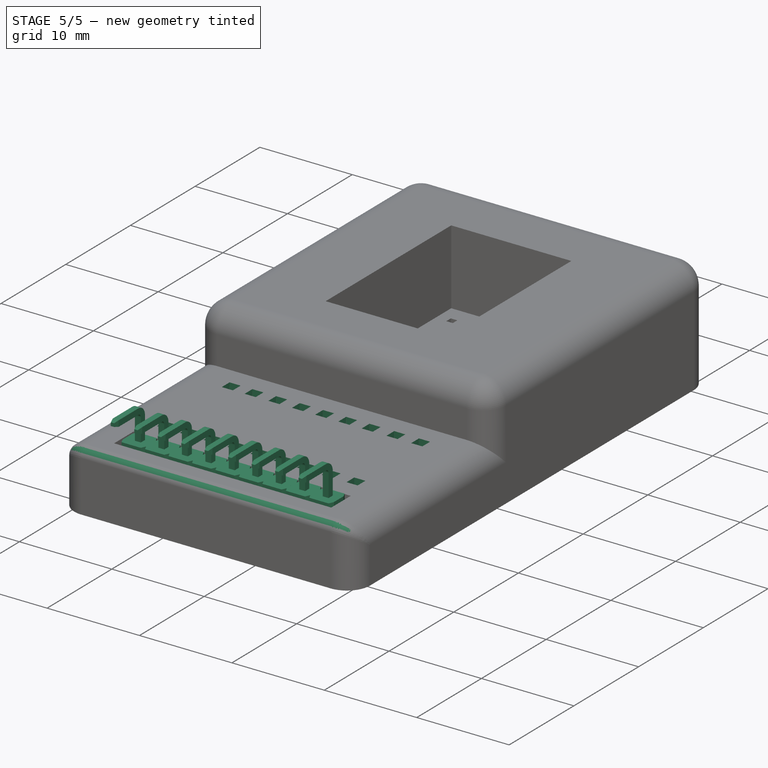
[diagram: stage 5 of 5 — iso view after this stage's code; geometry added in this stage tinted green]
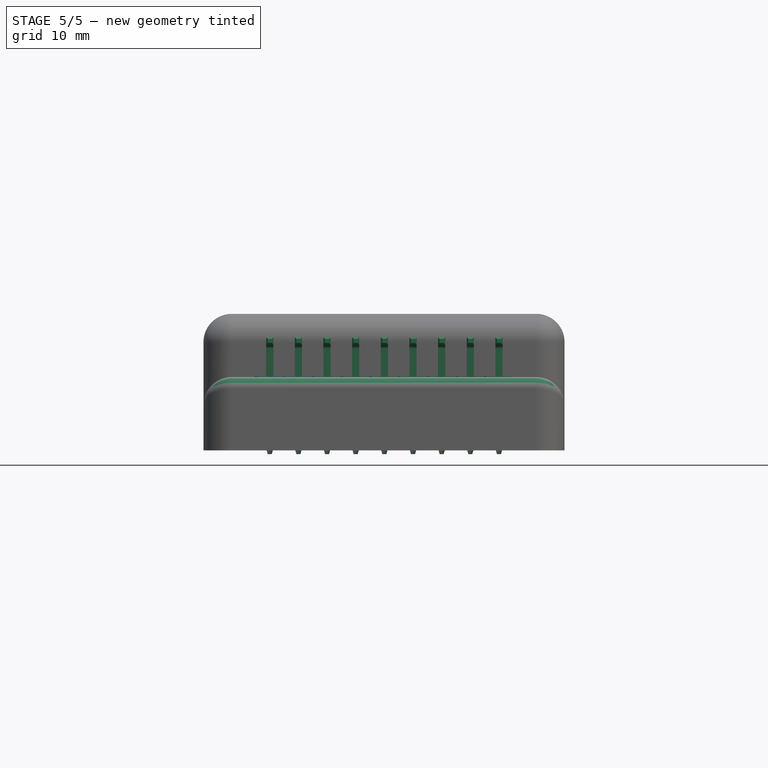
[diagram: stage 5 of 5 — front view after this stage's code; geometry added in this stage tinted green]
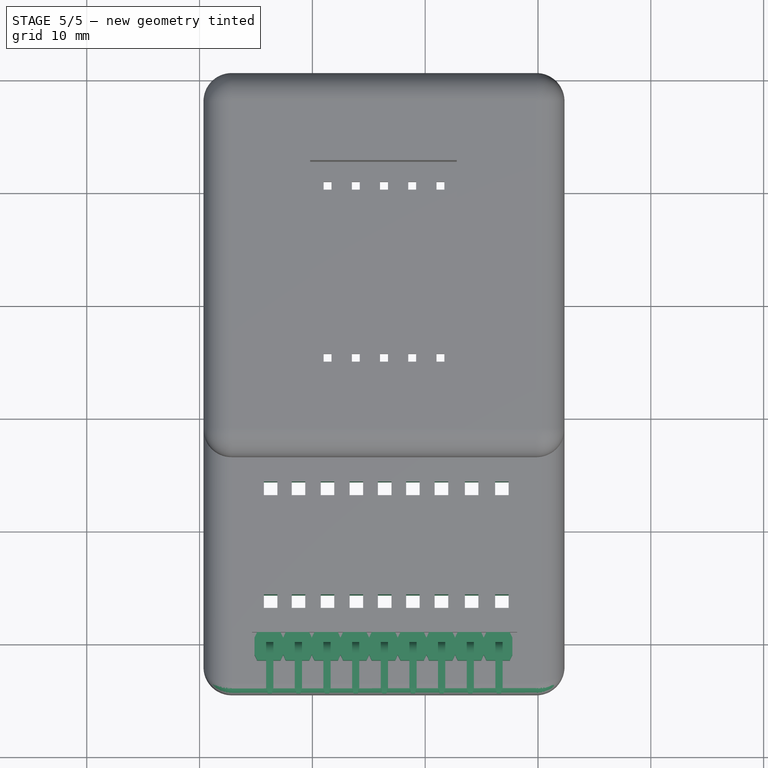
[diagram: stage 5 of 5 — top view after this stage's code; geometry added in this stage tinted green]
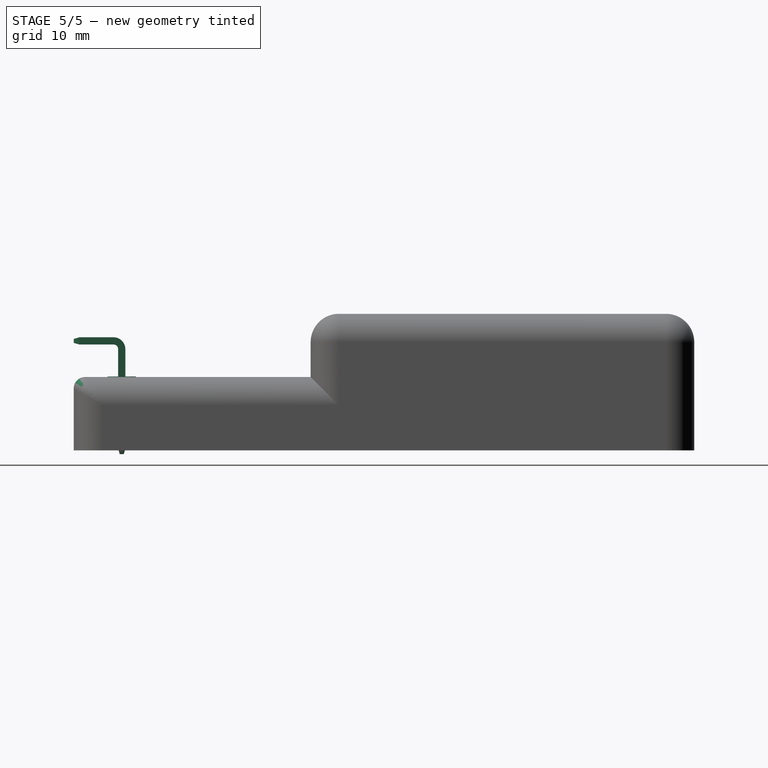
[diagram: stage 5 of 5 — right view after this stage's code; geometry added in this stage tinted green]
FEATURE [Part::Feature] Clone002001  label="Insulators001"
  Placement = pos=(8.84,-2.99972,-2.5) rot=(0.57735,-0.57735,-0.57735;4.18879rad)
  shape: bbox 7.62 x 2.5 x 2.54 mm, 42 faces, 3 solids (baked)
FEATURE [Part::Feature] Clone001001  label="pins001"
  Placement = pos=(3.84,-2.99972,4.7) rot=(0.57735,0.57735,0.57735;4.18879rad)
  shape: bbox 5.72 x 4.57 x 10.36 mm, 54 faces, 3 solids (baked)
FEATURE [Part::FeaturePython] Clone  label="Insulators002"  # Draft clone (typed FeaturePython)
  AttacherType = Attacher::AttachEngine3D
  Fuse = false
  Objects = -> [Clone002001]
  Placement = pos=(1.22,-2.99972,-2.5) rot=(0.57735,-0.57735,-0.57735;4.18879rad)
  Scale = (1,1,1)
FEATURE [Part::FeaturePython] Clone002002  label="pins002"  # Draft clone (typed FeaturePython)
  AttacherType = Attacher::AttachEngine3D
  Fuse = false
  Objects = -> [Clone001001]
  Placement = pos=(-3.78,-2.99972,4.7) rot=(0.57735,0.57735,0.57735;4.18879rad)
  Scale = (1,1,1)
FEATURE [Part::FeaturePython] Clone002003  label="Insulators003"  # Draft clone (typed FeaturePython)
  AttacherType = Attacher::AttachEngine3D
  Fuse = false
  Objects = -> [Clone002001]
  Placement = pos=(16.46,-2.99972,-2.5) rot=(0.57735,-0.57735,-0.57735;4.18879rad)
  Scale = (1,1,1)
FEATURE [Part::FeaturePython] Clone002004  label="pins003"  # Draft clone (typed FeaturePython)
  AttacherType = Attacher::AttachEngine3D
  Fuse = false
  Objects = -> [Clone001001]
  Placement = pos=(11.46,-2.99972,4.7) rot=(0.57735,0.57735,0.57735;4.18879rad)
  Scale = (1,1,1)
FEATURE [Part::MultiFuse] Fusion  label="Conector"
  Placement = pos=(0,-18.5,1) rot=(0,0,1;0rad)
  Refine = true
  Shapes = -> [Clone,Clone002002,Clone002003,Clone002004,Clone001001,Clone002001]
FEATURE [Part::Fillet] Fillet001
  Base = -> Fillet
  Edges = 1 edges r=1: [Edge7]
FEATURE [Part::Cut] Cut007  label="Taladros resistencia 003"
  Base = -> Fillet001
  Refine = true
  Tool = -> Fusion003
FEATURE [Part::Feature] Fusion003001  label="Taladros resistencia 2"
  Placement = pos=(0,-11,0) rot=(0,0,1;0rad)
  shape: bbox 21.7 x 1.2 x 10 mm, 54 faces, 9 solids (baked)
FEATURE [Part::Cut] Cut008  label="Taladros resistencai"
  Base = -> Cut007
  Refine = true
  Tool = -> Fusion003001
FEATURE [Part::Feature] Fusion003001001  label="Taladros002"
  Placement = pos=(0,-15,0) rot=(0,0,1;0rad)
  shape: bbox 21.7 x 1.2 x 10 mm, 54 faces, 9 solids (baked)
FEATURE [Part::Cut] Cut009
  Base = -> Cut008
  Refine = true
  Tool = -> Fusion003001001
FEATURE [Part::Cut] Cut010
  Base = -> Cut009
  Refine = true
  Tool = -> Fusion003001002
FEATURE [App::DocumentObjectGroup] Group  label="SRC"
  Group = -> [Cut010]
FEATURE [Part::Feature] Clone002004002001  label="Resistencia 330ohm"
  Placement = pos=(-3.7,-11.3,4) rot=(0,0,-1;1.5708rad)
  shape: bbox 2.3 x 10.71 x 5.15 mm, 28 faces, 6 solids (baked)
FEATURE [Part::Feature] Clone002004002002  label="Resistencia 330ohm001"
  Placement = pos=(-1.2,-11.3,4) rot=(0,0,-1;1.5708rad)
  shape: bbox 2.3 x 10.71 x 5.15 mm, 28 faces, 6 solids (baked)
FEATURE [Part::Feature] Clone002004002003  label="Resistencia 330ohm002"
  Placement = pos=(1.3,-11.3,4) rot=(0,0,-1;1.5708rad)
  shape: bbox 2.3 x 10.71 x 5.15 mm, 28 faces, 6 solids (baked)
FEATURE [Part::Feature] Clone002004002004  label="Resistencia 330ohm003"
  Placement = pos=(3.9,-11.3,4) rot=(0,0,-1;1.5708rad)
  shape: bbox 2.3 x 10.71 x 5.15 mm, 28 faces, 6 solids (baked)
FEATURE [Part::Feature] Clone002004002005  label="Resistencia 330ohm004"
  Placement = pos=(6.4,-11.3,4) rot=(0,0,-1;1.5708rad)
  shape: bbox 2.3 x 10.71 x 5.15 mm, 28 faces, 6 solids (baked)
FEATURE [Part::Feature] Clone002004002006  label="Resistencia 330ohm005"
  Placement = pos=(8.9,-11.3,4) rot=(0,0,-1;1.5708rad)
  shape: bbox 2.3 x 10.71 x 5.15 mm, 28 faces, 6 solids (baked)
FEATURE [Part::Feature] Clone002004002007  label="Resistencia 330ohm006"
  Placement = pos=(11.4,-11.3,4) rot=(0,0,-1;1.5708rad)
  shape: bbox 2.3 x 10.71 x 5.15 mm, 28 faces, 6 solids (baked)
FEATURE [Part::Feature] Clone002004002008  label="Resistencia 330ohm007"
  Placement = pos=(14.1,-11.3,4) rot=(0,0,-1;1.5708rad)
  shape: bbox 2.3 x 10.71 x 5.15 mm, 28 faces, 6 solids (baked)
FEATURE [Part::Feature] Clone002004002009  label="Resistencia 0ohm"
  Placement = pos=(16.8,-11.3,4) rot=(0,0,-1;1.5708rad)
  shape: bbox 2.3 x 10.71 x 5.15 mm, 28 faces, 6 solids (baked)
FEATURE [App::DocumentObjectGroup] Group003  label="Resistencias"
  Group = -> [Clone002004002001,Clone002004002002,Clone002004002003,Clone002004002004,Clone002004002005,Clone002004002006,Clone002004002007,Clone002004002008,Clone002004002009]
FEATURE [App::FeaturePython] Text  # WARN: FeaturePython — macro-defined, semantics opaque (R4)
  Placement = pos=(-4.53721,-27.4471,6.02) rot=(0,0,1;0rad)
  Text = A
FEATURE [App::FeaturePython] Text001  # WARN: FeaturePython — macro-defined, semantics opaque (R4)
  Placement = pos=(-1.7385,-27.4747,6.02) rot=(0,0,1;0rad)
  Text = B
FEATURE [App::FeaturePython] Text002  # WARN: FeaturePython — macro-defined, semantics opaque (R4)
  Placement = pos=(0.508348,-27.4521,6.02) rot=(0,0,1;0rad)
  Text = C
FEATURE [App::FeaturePython] Text003  # WARN: FeaturePython — macro-defined, semantics opaque (R4)
  Placement = pos=(3.08847,-27.4917,6.02) rot=(0,0,1;0rad)
  Text = D
FEATURE [App::FeaturePython] Text004  # WARN: FeaturePython — macro-defined, semantics opaque (R4)
  Placement = pos=(5.65746,-27.4735,6.02) rot=(0,0,1;0rad)
  Text = E
FEATURE [App::FeaturePython] Text005  # WARN: FeaturePython — macro-defined, semantics opaque (R4)
  Placement = pos=(8.22,-27.4847,6.02) rot=(0,0,1;0rad)
  Text = F
FEATURE [App::FeaturePython] Text006  # WARN: FeaturePython — macro-defined, semantics opaque (R4)
  Placement = pos=(10.8104,-27.4763,6.02) rot=(0,0,1;0rad)
  Text = G
FEATURE [App::FeaturePython] Text007  # WARN: FeaturePython — macro-defined, semantics opaque (R4)
  Placement = pos=(13.1953,-27.4762,6.02) rot=(0,0,1;0rad)
  Text = PT
FEATURE [App::FeaturePython] Text008  # WARN: FeaturePython — macro-defined, semantics opaque (R4)
  Placement = pos=(16.22,-27.4847,6.02) rot=(0,0,1;0rad)
  Text = GND
FEATURE [App::DocumentObjectGroup] Group004  label="Textos"
  Group = -> [Text,Text001,Text002,Text003,Text004,Text005,Text006,Text007,Text008]
FEATURE [Part::Feature] Cut010_solid  label="PcbPrint 7 seg resistencia"
  shape: bbox 32 x 55 x 12.1 mm, 351 faces (baked)
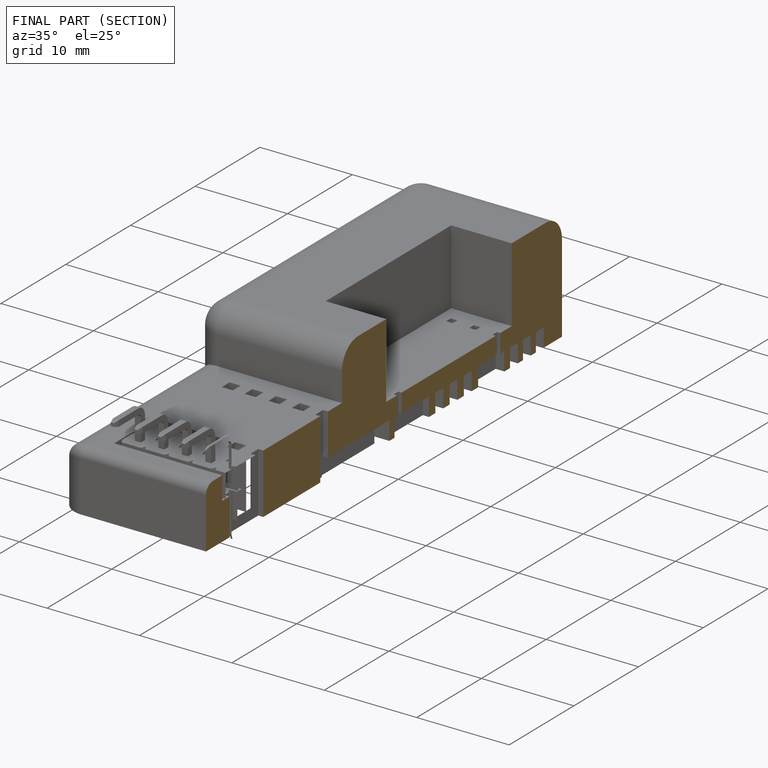
[diagram: finished part — half-section view (interior)]
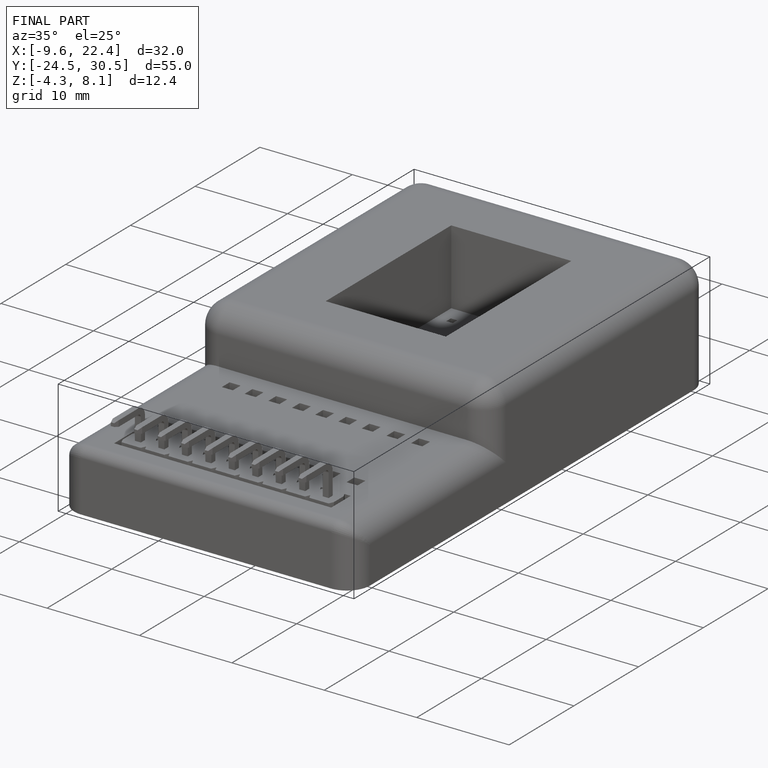
[diagram: finished part — iso view with bounding-box wireframe]
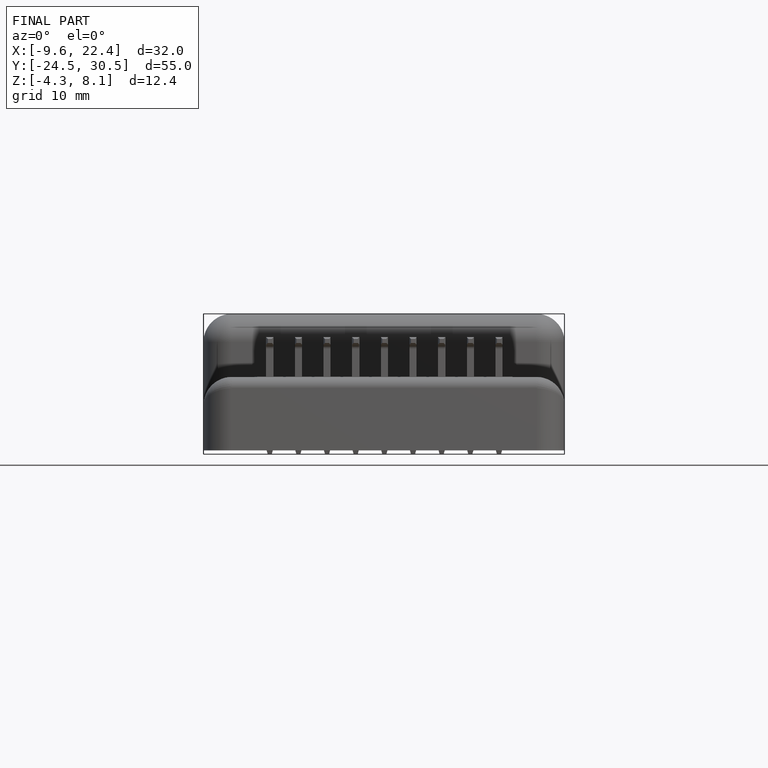
[diagram: finished part — front view with bounding-box wireframe]
